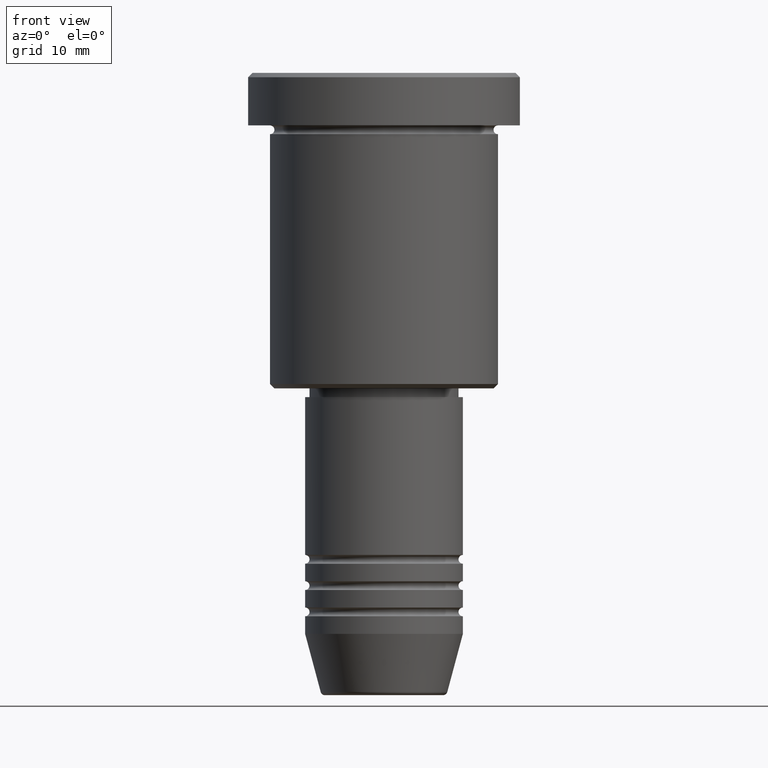
[diagram: clean part render]
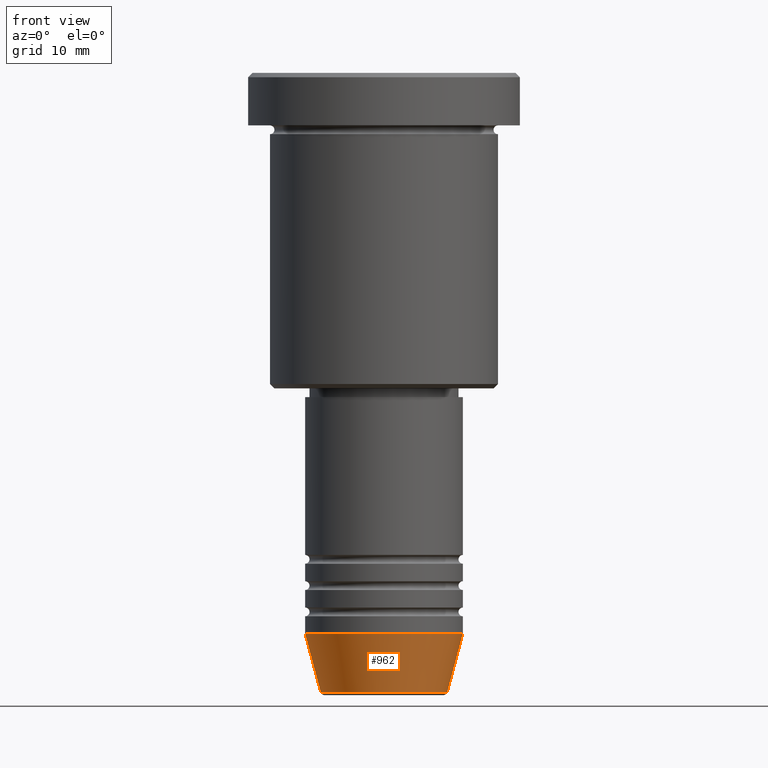
[diagram: same view with one face highlighted and labeled with its STEP entity id]
A machine part, front view. The second image highlights one B-rep face of the part: STEP entity #962.
In plain terms, the highlighted conical surface has half-angle 15 deg.
Its self-contained STEP definition (entity closure, byte-faithful):
#4 = CARTESIAN_POINT ( 'NONE',  ( 9.000000000000000000, 0.000000000000000000, -64.00000000000000000 ) ) ;
#37 = LINE ( 'NONE', #4, #809 ) ;
#54 = EDGE_CURVE ( 'NONE', #750, #1012, #1096, .T. ) ;
#107 = AXIS2_PLACEMENT_3D ( 'NONE', #714, #1005, #267 ) ;
#206 = AXIS2_PLACEMENT_3D ( 'NONE', #988, #501, #251 ) ;
#241 = VERTEX_POINT ( 'NONE', #771 ) ;
#251 = DIRECTION ( 'NONE',  ( 1.000000000000000000, 0.000000000000000000, 0.000000000000000000 ) ) ;
#267 = DIRECTION ( 'NONE',  ( 1.000000000000000000, 0.000000000000000000, 0.000000000000000000 ) ) ;
#279 = CIRCLE ( 'NONE', #206, 7.223655072137188604 ) ;
#281 = EDGE_CURVE ( 'NONE', #412, #1012, #37, .T. ) ;
#282 = LINE ( 'NONE', #830, #1143 ) ;
#298 = EDGE_CURVE ( 'NONE', #241, #412, #279, .T. ) ;
#412 = VERTEX_POINT ( 'NONE', #636 ) ;
#490 = ORIENTED_EDGE ( 'NONE', *, *, #54, .F. ) ;
#501 = DIRECTION ( 'NONE',  ( -0.000000000000000000, -0.000000000000000000, 1.000000000000000000 ) ) ;
#519 = DIRECTION ( 'NONE',  ( 0.2588190451025213501, 0.000000000000000000, 0.9659258262890680902 ) ) ;
#565 = ORIENTED_EDGE ( 'NONE', *, *, #711, .F. ) ;
#594 = CONICAL_SURFACE ( 'NONE', #746, 9.000000000000000000, 0.2617993877991500740 ) ;
#636 = CARTESIAN_POINT ( 'NONE',  ( 7.223655072137188604, 0.000000000000000000, -70.62940952255127058 ) ) ;
#711 = EDGE_CURVE ( 'NONE', #241, #750, #282, .T. ) ;
#714 = CARTESIAN_POINT ( 'NONE',  ( 0.000000000000000000, 0.000000000000000000, -64.00000000000000000 ) ) ;
#746 = AXIS2_PLACEMENT_3D ( 'NONE', #1179, #1073, #1175 ) ;
#750 = VERTEX_POINT ( 'NONE', #751 ) ;
#751 = CARTESIAN_POINT ( 'NONE',  ( -9.000000000000000000, 1.102182119232617714E-15, -64.00000000000000000 ) ) ;
#771 = CARTESIAN_POINT ( 'NONE',  ( -7.223655072137189492, 9.934123627281765110E-16, -70.62940952255127058 ) ) ;
#807 = FACE_OUTER_BOUND ( 'NONE', #863, .T. ) ;
#809 = VECTOR ( 'NONE', #519, 1000.000000000000000 ) ;
#830 = CARTESIAN_POINT ( 'NONE',  ( -9.000000000000000000, 1.102182119232617714E-15, -64.00000000000000000 ) ) ;
#847 = DIRECTION ( 'NONE',  ( -0.2588190451025213501, 3.169619151431772337E-17, 0.9659258262890680902 ) ) ;
#863 = EDGE_LOOP ( 'NONE', ( #565, #897, #922, #490 ) ) ;
#897 = ORIENTED_EDGE ( 'NONE', *, *, #298, .T. ) ;
#922 = ORIENTED_EDGE ( 'NONE', *, *, #281, .T. ) ;
#962 = ADVANCED_FACE ( 'NONE', ( #807 ), #594, .T. ) ;
#988 = CARTESIAN_POINT ( 'NONE',  ( 0.000000000000000000, 0.000000000000000000, -70.62940952255127058 ) ) ;
#1000 = CARTESIAN_POINT ( 'NONE',  ( 9.000000000000000000, 0.000000000000000000, -64.00000000000000000 ) ) ;
#1005 = DIRECTION ( 'NONE',  ( -0.000000000000000000, -0.000000000000000000, 1.000000000000000000 ) ) ;
#1012 = VERTEX_POINT ( 'NONE', #1000 ) ;
#1073 = DIRECTION ( 'NONE',  ( -0.000000000000000000, -0.000000000000000000, 1.000000000000000000 ) ) ;
#1096 = CIRCLE ( 'NONE', #107, 9.000000000000000000 ) ;
#1143 = VECTOR ( 'NONE', #847, 1000.000000000000000 ) ;
#1175 = DIRECTION ( 'NONE',  ( 1.000000000000000000, 0.000000000000000000, 0.000000000000000000 ) ) ;
#1179 = CARTESIAN_POINT ( 'NONE',  ( 0.000000000000000000, 0.000000000000000000, -64.00000000000000000 ) ) ;